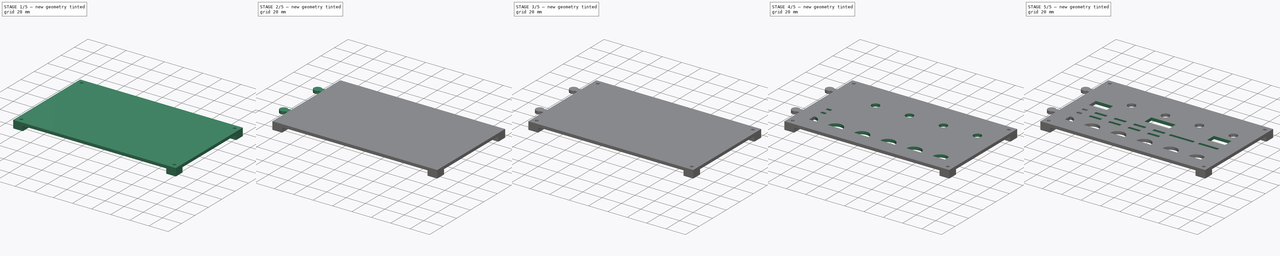
[diagram: build sequence overview — one tinted view per stage of 5, left to right]
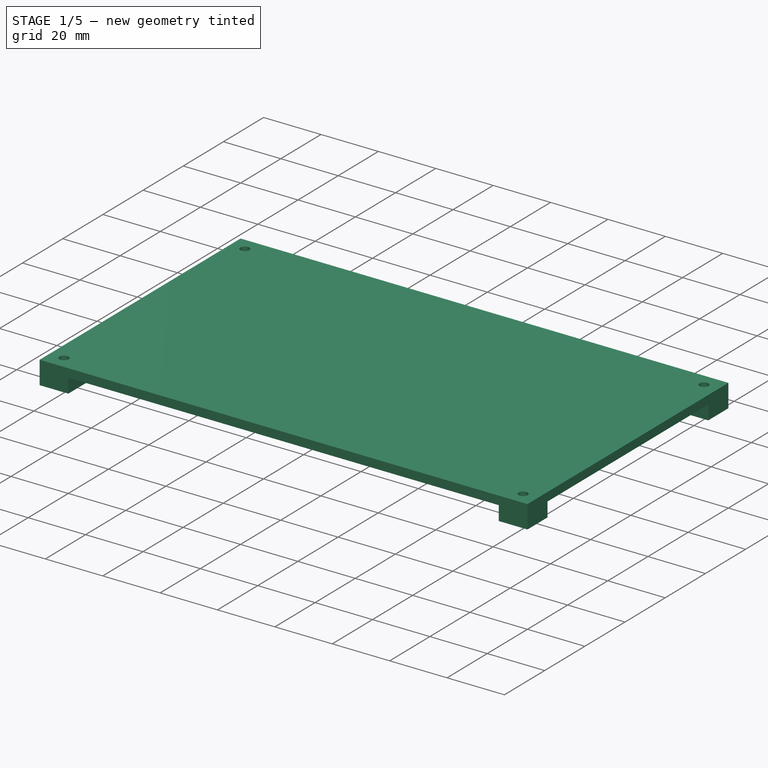
[diagram: stage 1 of 5 — iso view after this stage's code; geometry added in this stage tinted green]
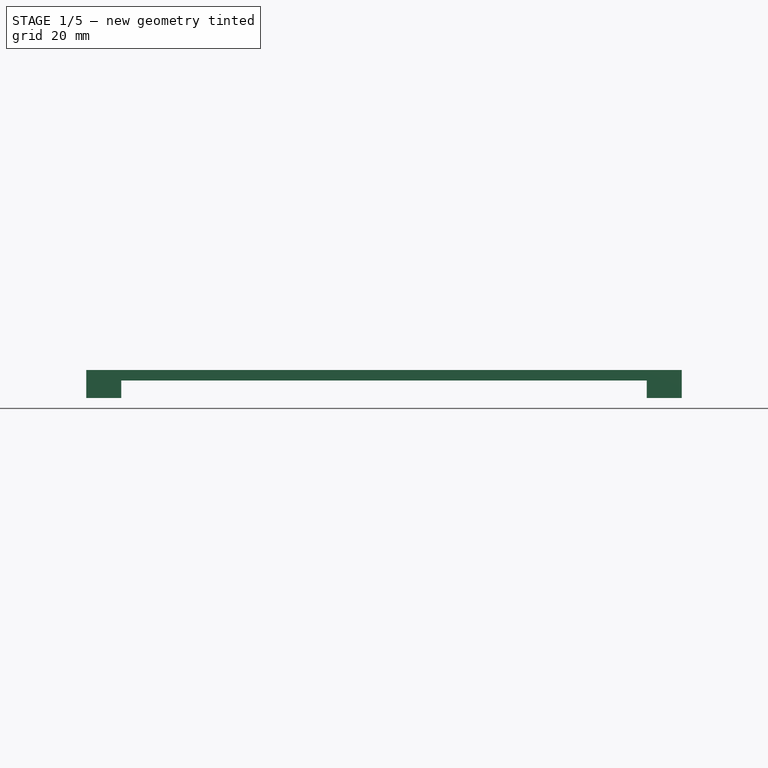
[diagram: stage 1 of 5 — front view after this stage's code; geometry added in this stage tinted green]
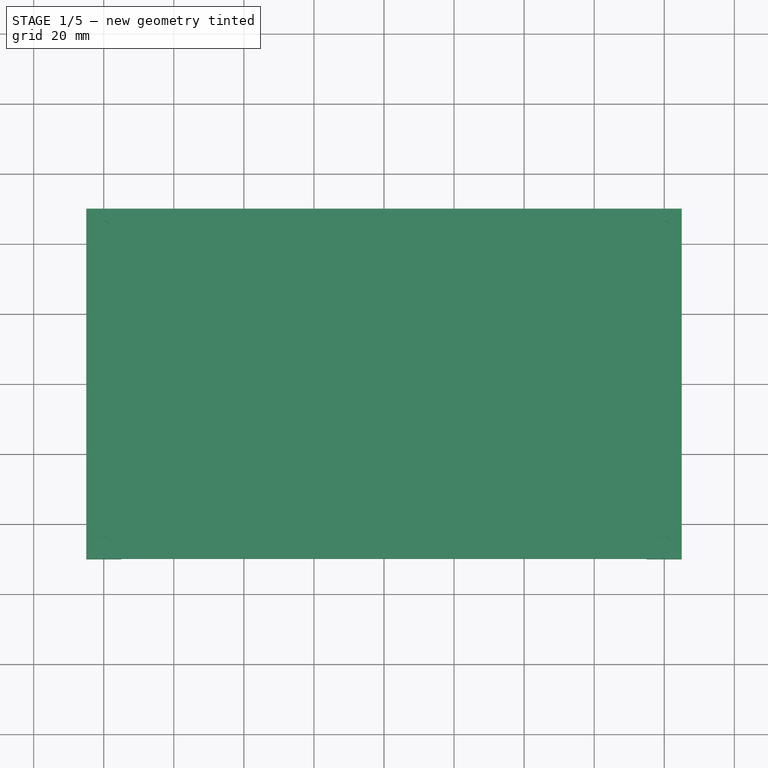
[diagram: stage 1 of 5 — top view after this stage's code; geometry added in this stage tinted green]
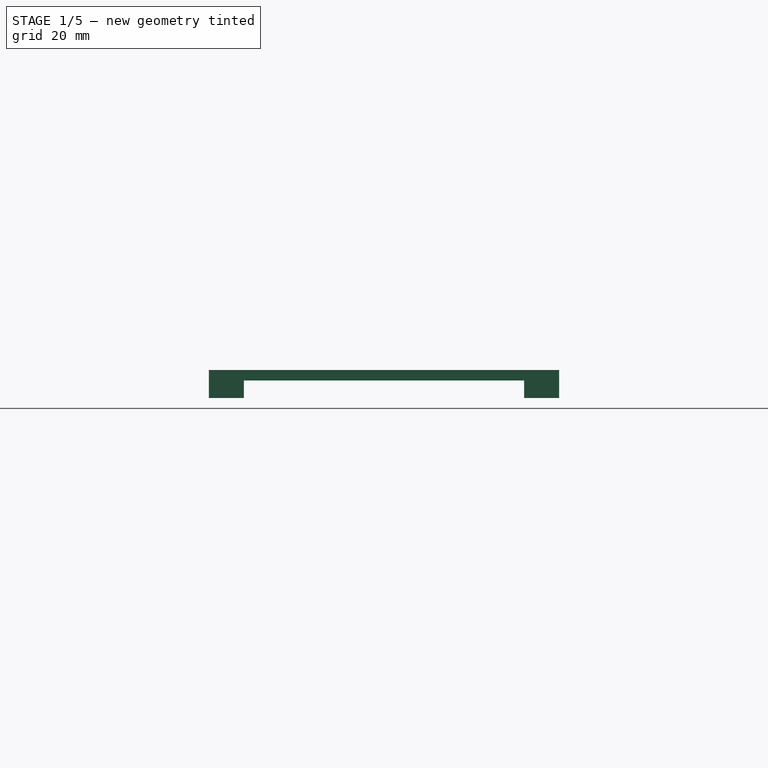
[diagram: stage 1 of 5 — right view after this stage's code; geometry added in this stage tinted green]
FCSTD DOCUMENT  (FreeCAD 0.17R13522 (Git))
Label: GongJuJia-jwei-1.0
License: All rights reserved
LicenseURL: http://en.wikipedia.org/wiki/All_rights_reserved
objects: Sketcher::SketchObject×13, PartDesign::Pocket×10, PartDesign::Mirrored×9, PartDesign::LinearPattern×6, PartDesign::MultiTransform×5, PartDesign::Pad×3, PartDesign::Body×2, PartDesign::ShapeBinder×1
note: 62 computed .brp shape members not serialized (recipe doc carries the construction recipe); baked Part::Feature solids carry a one-line shape summary decoded from their .brp

FEATURE [Sketcher::SketchObject] Sketch007
  MapMode = 5
  Support = -> [XY_Plane001]
  sketch-geometry (4):
    g0: LineSegment StartX=-85 StartY=50 StartZ=0 EndX=85 EndY=50 EndZ=0
    g1: LineSegment StartX=85 StartY=50 StartZ=0 EndX=85 EndY=-50 EndZ=0
    g2: LineSegment StartX=85 StartY=-50 StartZ=0 EndX=-85 EndY=-50 EndZ=0
    g3: LineSegment StartX=-85 StartY=-50 StartZ=0 EndX=-85 EndY=50 EndZ=0
  constraints (12):
    c: Coincident(g0,g1)
    c: Coincident(g1,g2)
    c: Coincident(g2,g3)
    c: Coincident(g3,g0)
    c: Horizontal(g0)
    c: Horizontal(g2)
    c: Vertical(g1)
    c: Vertical(g3)
    c: DistanceX(g0,g0) = 170
    c: DistanceY(g3,g3) = 100
    c: DistanceY(g-1,g0) = 50
    c: DistanceX(g-2,g0) = 85
FEATURE [PartDesign::Pad] Pad001
  Length = 3
  Length2 = 100
  Profile = -> Sketch007
  Type = 0
FEATURE [Sketcher::SketchObject] Sketch008
  ExternalGeometry = -> [Pad001]
  MapMode = 5
  Placement = pos=(0,0,0) rot=(1,0,0;3.14159rad)
  Support = -> [Pad001]
  sketch-geometry (1):
    g0: Circle CenterX=-80 CenterY=45 CenterZ=0 NormalX=0 NormalY=0 NormalZ=1 AngleXU=0 Radius=1.55
  constraints (3):
    c: Radius(g0) = 1.55
    c: Distance(g0,g-3) = 5
    c: Distance(g0,g-4) = 5
FEATURE [PartDesign::Pocket] Pocket006
  BaseFeature = -> Pad001
  Length = 5
  Length2 = 100
  Midplane = true
  Profile = -> Sketch008
  Type = 1
FEATURE [PartDesign::Mirrored] Mirrored003
  MirrorPlane = -> Sketch008 [V_Axis]
FEATURE [PartDesign::Mirrored] Mirrored004
  MirrorPlane = -> Sketch008 [H_Axis]
FEATURE [PartDesign::MultiTransform] MultiTransform002
  BaseFeature = -> Pocket006
  Originals = -> [Pocket006]
  Transformations = -> [Mirrored003,Mirrored004]
FEATURE [Sketcher::SketchObject] Sketch009
  ExternalGeometry = -> [MultiTransform002]
  MapMode = 5
  Placement = pos=(0,0,0) rot=(1,0,0;3.14159rad)
  Support = -> [MultiTransform002]
  sketch-geometry (4):
    g0: LineSegment StartX=-85 StartY=50 StartZ=0 EndX=-75 EndY=50 EndZ=0
    g1: LineSegment StartX=-75 StartY=50 StartZ=0 EndX=-75 EndY=40 EndZ=0
    g2: LineSegment StartX=-75 StartY=40 StartZ=0 EndX=-85 EndY=40 EndZ=0
    g3: LineSegment StartX=-85 StartY=40 StartZ=0 EndX=-85 EndY=50 EndZ=0
  constraints (11):
    c: Coincident(g0,g1)
    c: Coincident(g1,g2)
    c: Coincident(g2,g3)
    c: Coincident(g3,g0)
    c: Horizontal(g0)
    c: Horizontal(g2)
    c: Vertical(g1)
    c: Vertical(g3)
    c: Distance(g0) = 10
    c: DistanceY(g3,g3) = 10
    c: Coincident(g0,g-4)
FEATURE [PartDesign::Pad] Pad002
  BaseFeature = -> MultiTransform002
  Length = 5
  Length2 = 100
  Profile = -> Sketch009
  Type = 0
FEATURE [PartDesign::Mirrored] Mirrored005
  MirrorPlane = -> Sketch009 [V_Axis]
FEATURE [PartDesign::Mirrored] Mirrored006
  MirrorPlane = -> Sketch009 [H_Axis]
FEATURE [PartDesign::MultiTransform] MultiTransform003
  BaseFeature = -> Pad002
  Originals = -> [Pad002]
  Transformations = -> [Mirrored005,Mirrored006]
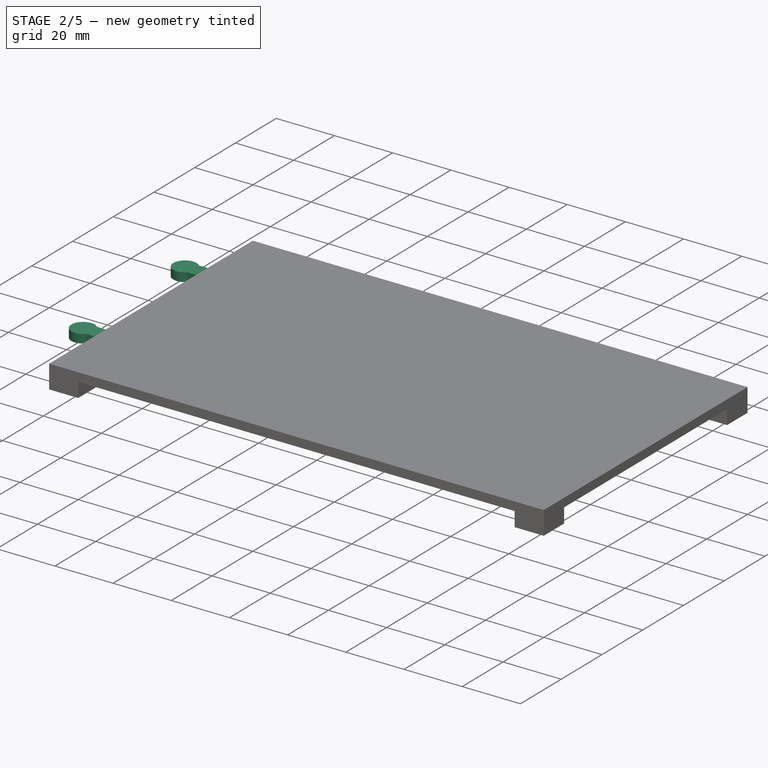
[diagram: stage 2 of 5 — iso view after this stage's code; geometry added in this stage tinted green]
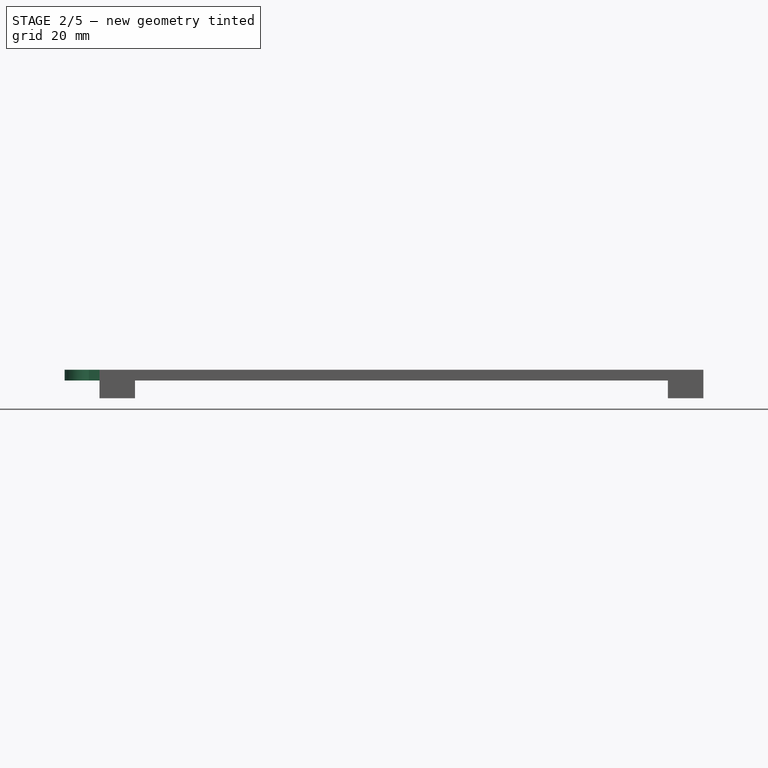
[diagram: stage 2 of 5 — front view after this stage's code; geometry added in this stage tinted green]
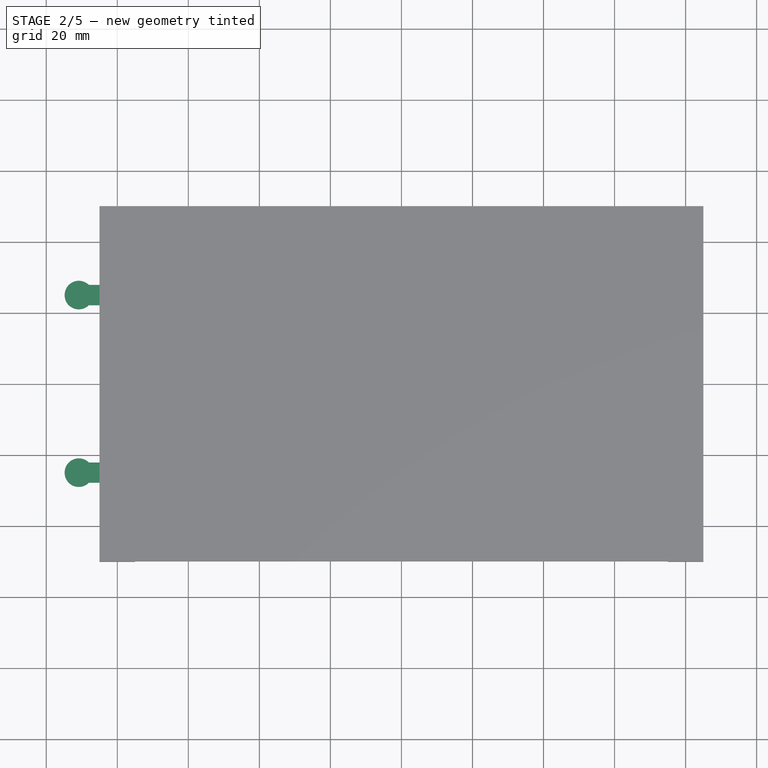
[diagram: stage 2 of 5 — top view after this stage's code; geometry added in this stage tinted green]
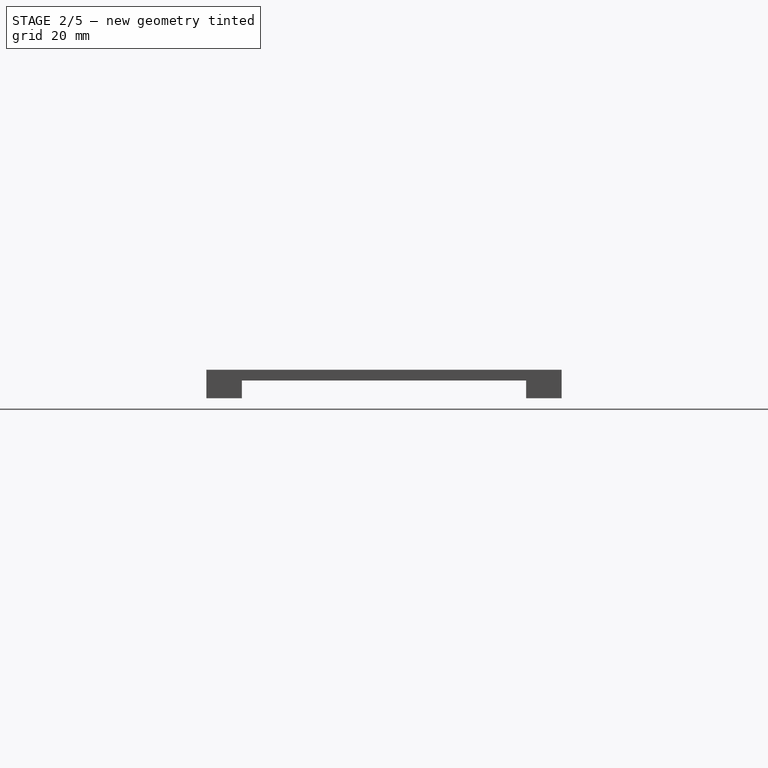
[diagram: stage 2 of 5 — right view after this stage's code; geometry added in this stage tinted green]
FEATURE [Sketcher::SketchObject] Sketch
  MapMode = 5
  Support = -> [XY_Plane]
  sketch-geometry (12):
    g0: LineSegment StartX=-85 StartY=50 StartZ=0 EndX=85 EndY=50 EndZ=0
    g1: LineSegment StartX=85 StartY=0 StartZ=0 EndX=-85 EndY=0 EndZ=0
    g2: ArcOfCircle CenterX=-90.8284 CenterY=25 CenterZ=0 NormalX=0 NormalY=0 NormalZ=1 AngleXU=0 Radius=4 StartAngle=0.785398 EndAngle=5.49779
    g3: LineSegment StartX=-88 StartY=22.1716 StartZ=0 EndX=-85 EndY=22.1716 EndZ=0
    g4: LineSegment StartX=-88 StartY=27.8284 StartZ=0 EndX=-85 EndY=27.8284 EndZ=0
    g5: LineSegment StartX=-85 StartY=50 StartZ=0 EndX=-85 EndY=27.8284 EndZ=0
    g6: LineSegment StartX=-85 StartY=22.1716 StartZ=0 EndX=-85 EndY=0 EndZ=0
    g7: ArcOfCircle CenterX=78.818 CenterY=25 CenterZ=0 NormalX=0 NormalY=0 NormalZ=1 AngleXU=0 Radius=4.5 StartAngle=0.785398 EndAngle=5.49779
    g8: LineSegment StartX=82 StartY=28.182 StartZ=0 EndX=85 EndY=28.182 EndZ=0
    g9: LineSegment StartX=82 StartY=21.818 StartZ=0 EndX=85 EndY=21.818 EndZ=0
    g10: LineSegment StartX=85 StartY=0 StartZ=0 EndX=85 EndY=21.818 EndZ=0
    g11: LineSegment StartX=85 StartY=28.182 StartZ=0 EndX=85 EndY=50 EndZ=0
  constraints (37):
    c: Horizontal(g0)
    c: Horizontal(g1)
    c: DistanceX(g0,g0) = 170
    c: DistanceY(g1,g0) = 50
    c: DistanceX(g-2,g0) = 85
    c: Radius(g2) = 4
    c: Angle(g2) = 4.71239
    c: Vertical(g2,g2)
    c: DistanceY(g-1,g2) = 25
    c: Coincident(g3,g2)
    c: Horizontal(g3)
    c: Coincident(g4,g2)
    c: Horizontal(g4)
    c: Coincident(g5,g0)
    c: Coincident(g5,g4)
    c: Vertical(g5)
    c: Coincident(g6,g3)
    c: Coincident(g6,g1)
    c: Vertical(g6)
    c: DistanceX(g4,g4) = 3
    c: Radius(g7) = 4.5
    c: Angle(g7) = 4.71239
    c: Vertical(g7,g7)
    c: DistanceY(g-1,g7) = 25
    c: Coincident(g8,g7)
    c: Horizontal(g8)
    c: Coincident(g9,g7)
    c: Horizontal(g9)
    c: DistanceX(g8,g8) = 3
    c: Coincident(g10,g1)
    c: Coincident(g10,g9)
    c: Vertical(g10)
    c: Coincident(g11,g8)
    c: Coincident(g11,g0)
    c: Vertical(g11)
    c: Vertical(g1,g0)
    c: Vertical(g0,g1)
FEATURE [PartDesign::Pad] Pad
  Length = 3
  Length2 = 100
  Profile = -> Sketch
  Type = 0
FEATURE [PartDesign::Mirrored] Mirrored
  BaseFeature = -> Pad
  MirrorPlane = -> Sketch [H_Axis]
  Originals = -> [Pad]
FEATURE [Sketcher::SketchObject] Sketch010
  ExternalGeometry = -> [MultiTransform003]
  MapMode = 5
  Placement = pos=(0,0,-5) rot=(1,0,0;3.14159rad)
  Support = -> [MultiTransform003]
  sketch-geometry (1):
    g0: Circle CenterX=-80 CenterY=45 CenterZ=0 NormalX=0 NormalY=0 NormalZ=1 AngleXU=0 Radius=3
  constraints (3):
    c: Radius(g0) = 3
    c: Distance(g0,g-3) = 5
    c: Distance(g0,g-4) = 5
FEATURE [PartDesign::Pocket] Pocket007
  BaseFeature = -> MultiTransform003
  Length = 5
  Length2 = 100
  Profile = -> Sketch010
  Type = 0
FEATURE [PartDesign::Mirrored] Mirrored007
  MirrorPlane = -> Sketch010 [V_Axis]
FEATURE [PartDesign::Mirrored] Mirrored008
  MirrorPlane = -> Sketch010 [H_Axis]
FEATURE [PartDesign::MultiTransform] MultiTransform004
  BaseFeature = -> Pocket007
  Originals = -> [Pocket007]
  Transformations = -> [Mirrored007,Mirrored008]
FEATURE [PartDesign::Body] Body  label="up"
  Group = -> [Sketch,Pad,Mirrored,Copyrefine,Sketch011,Pocket,MultiTransform,Mirrored009,Mirrored010,Sketch012,Pocket008,LinearPattern,Sketch013,Pocket009,LinearPattern001,Sketch014,Pocket010,LinearPattern002,Sketch015,Pocket011,LinearPattern003,Sketch016,Pocket012,LinearPattern004,Sketch017,Pocket013,MultiTransform005,LinearPattern005]
  Origin = -> Origin
  Tip = -> MultiTransform005
FEATURE [Sketcher::SketchObject] Sketch018
  MapMode = 5
  Placement = pos=(0,0,0) rot=(1,0,0;3.14159rad)
  Support = -> [MultiTransform004]
  sketch-geometry (4):
    g0: LineSegment StartX=-70 StartY=35 StartZ=0 EndX=70 EndY=35 EndZ=0
    g1: LineSegment StartX=70 StartY=35 StartZ=0 EndX=70 EndY=-35 EndZ=0
    g2: LineSegment StartX=70 StartY=-35 StartZ=0 EndX=-70 EndY=-35 EndZ=0
    g3: LineSegment StartX=-70 StartY=-35 StartZ=0 EndX=-70 EndY=35 EndZ=0
  constraints (12):
    c: Coincident(g0,g1)
    c: Coincident(g1,g2)
    c: Coincident(g2,g3)
    c: Coincident(g3,g0)
    c: Horizontal(g0)
    c: Horizontal(g2)
    c: Vertical(g1)
    c: Vertical(g3)
    c: DistanceX(g2,g2) = 140
    c: DistanceX(g-2,g2) = -70
    c: DistanceY(g3,g3) = 70
    c: DistanceY(g-1,g2) = -35
FEATURE [PartDesign::Pocket] Pocket014
  BaseFeature = -> MultiTransform004
  Length = 5
  Length2 = 100
  Profile = -> Sketch018
  Type = 1
FEATURE [PartDesign::Body] Body001  label="down"
  Group = -> [Sketch007,Pad001,Sketch008,Pocket006,MultiTransform002,Mirrored003,Mirrored004,Sketch009,Pad002,MultiTransform003,Mirrored005,Mirrored006,Sketch010,Pocket007,MultiTransform004,Mirrored007,Mirrored008,Sketch018,Pocket014]
  Origin = -> Origin001
  Tip = -> Pocket014
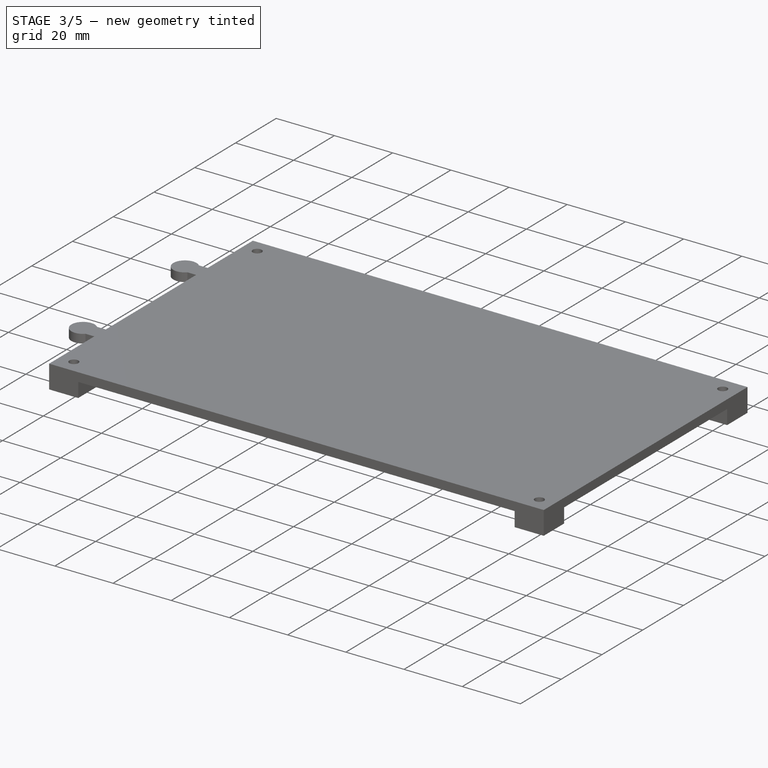
[diagram: stage 3 of 5 — iso view after this stage's code; geometry added in this stage tinted green]
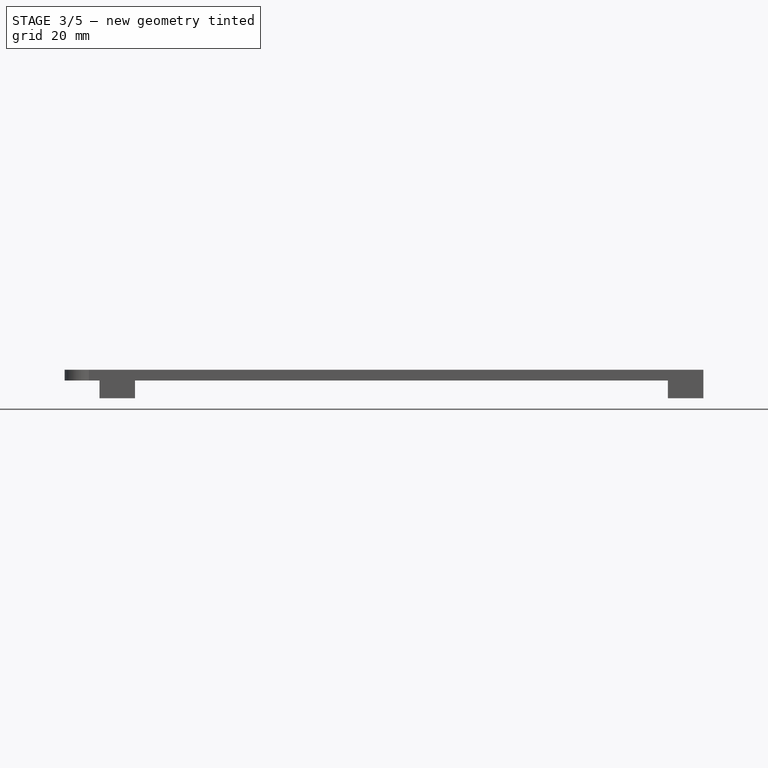
[diagram: stage 3 of 5 — front view after this stage's code; geometry added in this stage tinted green]
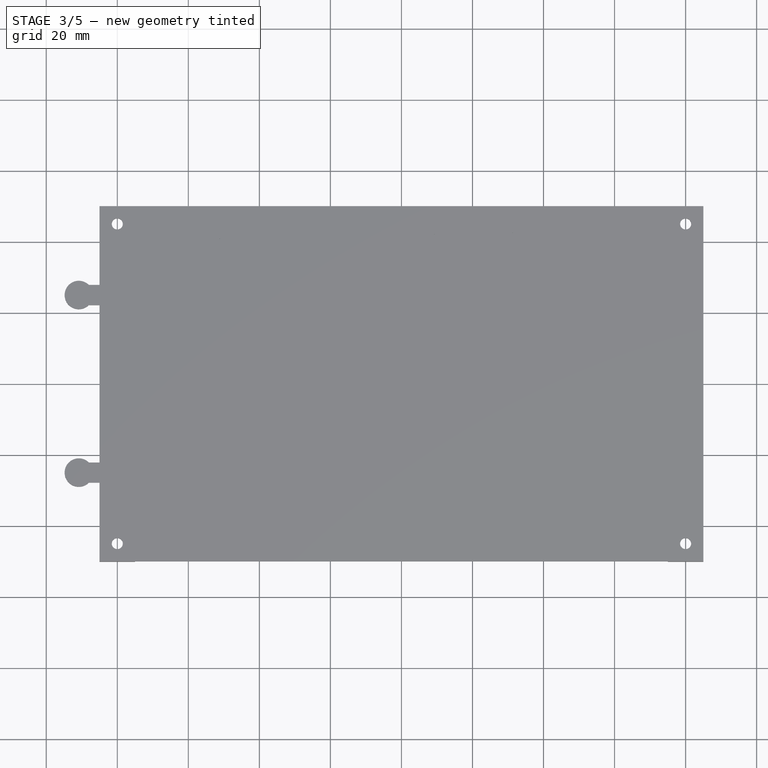
[diagram: stage 3 of 5 — top view after this stage's code; geometry added in this stage tinted green]
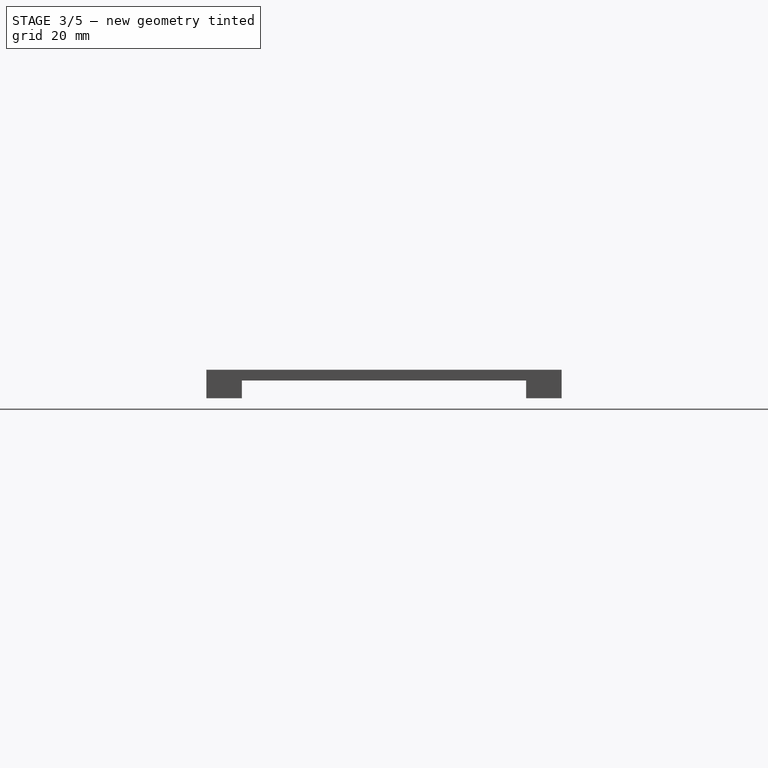
[diagram: stage 3 of 5 — right view after this stage's code; geometry added in this stage tinted green]
FEATURE [PartDesign::ShapeBinder] Copyrefine
FEATURE [Sketcher::SketchObject] Sketch011
  ExternalGeometry = -> [Copyrefine]
  MapMode = 5
  Placement = pos=(0,0,3) rot=(0,0,1;0rad)
  Support = -> [Copyrefine]
  sketch-geometry (1):
    g0: Circle CenterX=-80 CenterY=45 CenterZ=0 NormalX=0 NormalY=0 NormalZ=1 AngleXU=0 Radius=1.6
  constraints (3):
    c: Radius(g0) = 1.6
    c: Distance(g0,g-4) = 5
    c: Distance(g0,g-3) = 5
FEATURE [PartDesign::Pocket] Pocket
  BaseFeature = -> Mirrored
  Length = 5
  Length2 = 100
  Profile = -> Sketch011
  Type = 1
FEATURE [PartDesign::Mirrored] Mirrored009
  MirrorPlane = -> Sketch011 [V_Axis]
FEATURE [PartDesign::Mirrored] Mirrored010
  MirrorPlane = -> Sketch011 [H_Axis]
FEATURE [PartDesign::MultiTransform] MultiTransform
  BaseFeature = -> Pocket
  Originals = -> [Pocket]
  Transformations = -> [Mirrored009,Mirrored010]
FEATURE [Sketcher::SketchObject] Sketch012
  ExternalGeometry = -> [MultiTransform]
  MapMode = 5
  Placement = pos=(0,0,3) rot=(0,0,1;0rad)
  Support = -> [MultiTransform]
  sketch-geometry (1):
    g0: Circle CenterX=-75 CenterY=40 CenterZ=0 NormalX=0 NormalY=0 NormalZ=1 AngleXU=0 Radius=2.6
  constraints (3):
    c: Radius(g0) = 2.6
    c: Distance(g0,g-4) = 10
    c: Distance(g0,g-3) = 10
FEATURE [PartDesign::Pocket] Pocket008
  BaseFeature = -> MultiTransform
  Length = 5
  Length2 = 100
  Profile = -> Sketch012
  Type = 1
FEATURE [PartDesign::LinearPattern] LinearPattern
  BaseFeature = -> Pocket008
  Direction = -> Sketch012 [H_Axis]
  Length = 150
  Occurrences = 8
  Originals = -> [Pocket008]
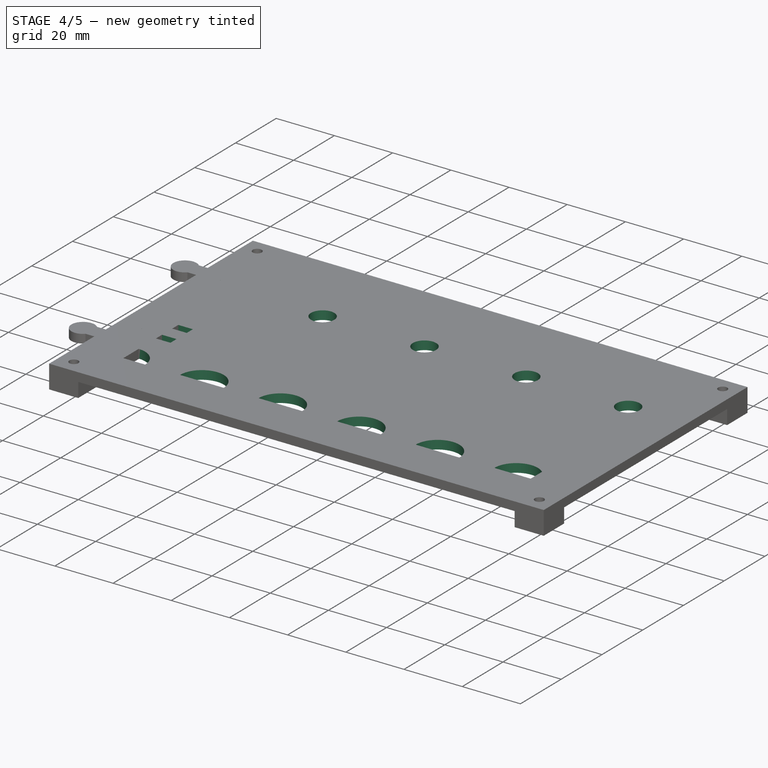
[diagram: stage 4 of 5 — iso view after this stage's code; geometry added in this stage tinted green]
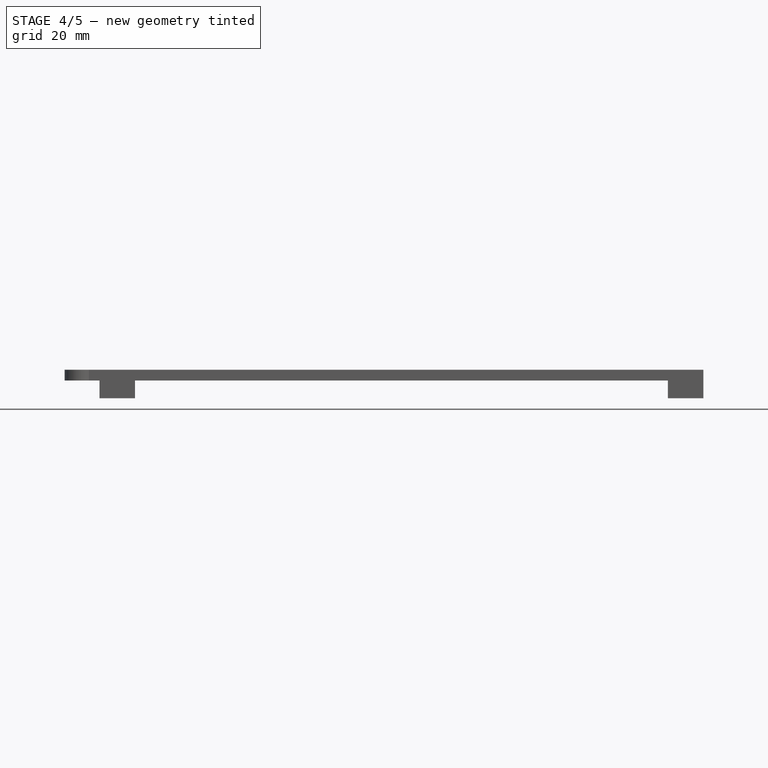
[diagram: stage 4 of 5 — front view after this stage's code; geometry added in this stage tinted green]
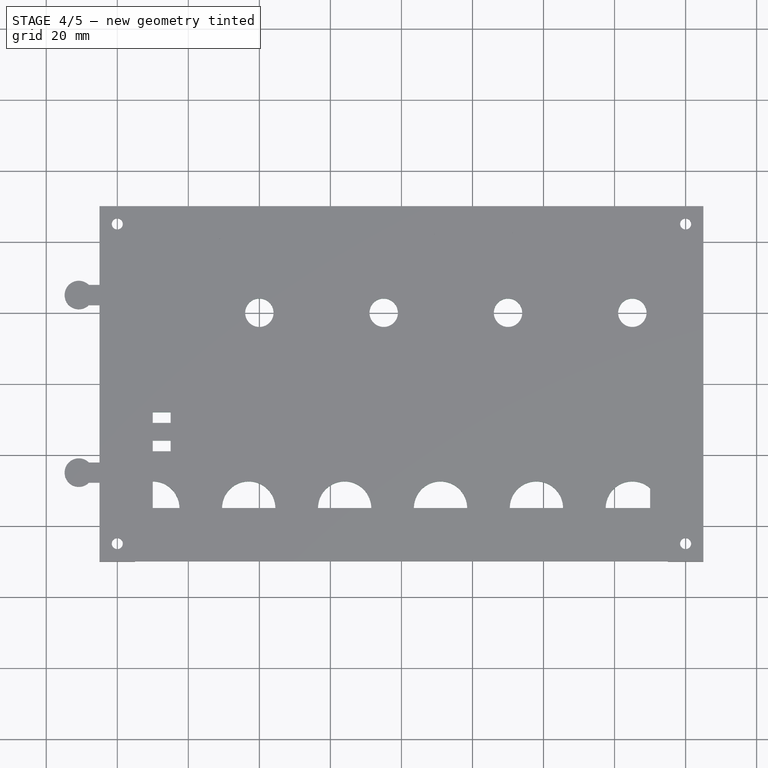
[diagram: stage 4 of 5 — top view after this stage's code; geometry added in this stage tinted green]
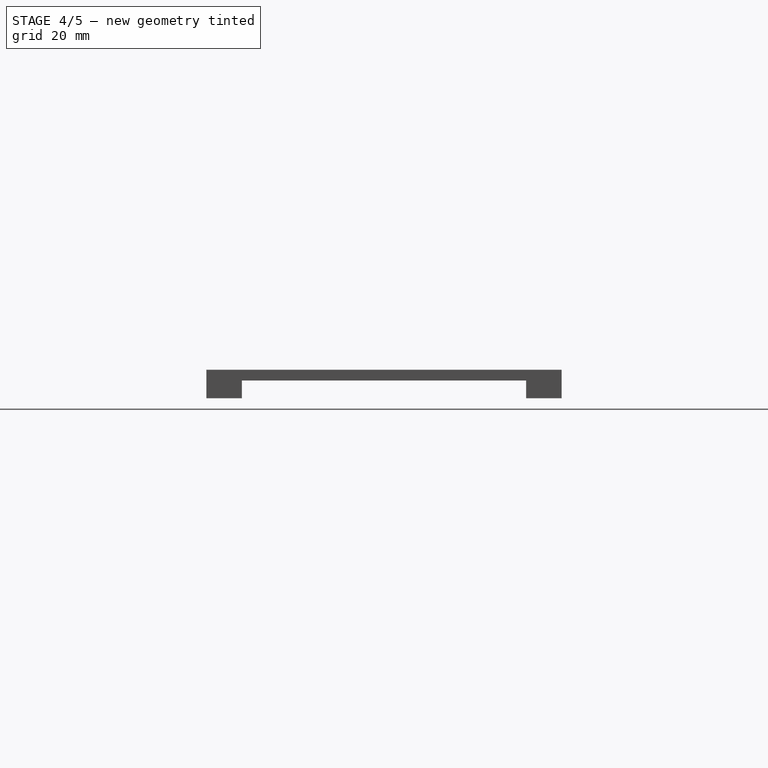
[diagram: stage 4 of 5 — right view after this stage's code; geometry added in this stage tinted green]
FEATURE [Sketcher::SketchObject] Sketch013
  ExternalGeometry = -> [LinearPattern]
  MapMode = 5
  Placement = pos=(0,0,3) rot=(0,0,1;0rad)
  Support = -> [LinearPattern]
  sketch-geometry (1):
    g0: Circle CenterX=-75 CenterY=20 CenterZ=0 NormalX=0 NormalY=0 NormalZ=1 AngleXU=0 Radius=4
  constraints (3):
    c: Radius(g0) = 4
    c: Distance(g0,g-3) = 30
    c: Distance(g0,g-4) = 10
FEATURE [PartDesign::Pocket] Pocket009
  BaseFeature = -> LinearPattern
  Length = 5
  Length2 = 100
  Profile = -> Sketch013
  Type = 1
FEATURE [PartDesign::LinearPattern] LinearPattern001
  BaseFeature = -> Pocket009
  Direction = -> Sketch013 [H_Axis]
  Length = 140
  Occurrences = 5
  Originals = -> [Pocket009]
FEATURE [Sketcher::SketchObject] Sketch014
  ExternalGeometry = -> [LinearPattern001]
  MapMode = 5
  Placement = pos=(0,0,3) rot=(0,0,1;0rad)
  Support = -> [LinearPattern001]
  sketch-geometry (1):
    g0: Circle CenterX=-70 CenterY=-35 CenterZ=0 NormalX=0 NormalY=0 NormalZ=1 AngleXU=0 Radius=7.5
  constraints (3):
    c: Radius(g0) = 7.5
    c: Distance(g0,g-4) = 15
    c: Distance(g0,g-3) = 15
FEATURE [PartDesign::Pocket] Pocket010
  BaseFeature = -> LinearPattern001
  Length = 5
  Length2 = 100
  Profile = -> Sketch014
  Type = 1
FEATURE [PartDesign::LinearPattern] LinearPattern002
  BaseFeature = -> Pocket010
  Direction = -> Sketch014 [H_Axis]
  Length = 135
  Occurrences = 6
  Originals = -> [Pocket010]
FEATURE [Sketcher::SketchObject] Sketch015
  ExternalGeometry = -> [LinearPattern002]
  MapMode = 5
  Placement = pos=(0,0,3) rot=(0,0,1;0rad)
  Support = -> [LinearPattern002]
  sketch-geometry (8):
    g0: LineSegment StartX=-77 StartY=-8 StartZ=0 EndX=-65 EndY=-8 EndZ=0
    g1: LineSegment StartX=-65 StartY=-8 StartZ=0 EndX=-65 EndY=-11 EndZ=0
    g2: LineSegment StartX=-65 StartY=-11 StartZ=0 EndX=-77 EndY=-11 EndZ=0
    g3: LineSegment StartX=-77 StartY=-11 StartZ=0 EndX=-77 EndY=-8 EndZ=0
    g4: LineSegment StartX=-77 StartY=-16 StartZ=0 EndX=-65 EndY=-16 EndZ=0
    g5: LineSegment StartX=-65 StartY=-16 StartZ=0 EndX=-65 EndY=-19 EndZ=0
    g6: LineSegment StartX=-65 StartY=-19 StartZ=0 EndX=-77 EndY=-19 EndZ=0
    g7: LineSegment StartX=-77 StartY=-19 StartZ=0 EndX=-77 EndY=-16 EndZ=0
  constraints (24):
    c: Coincident(g0,g1)
    c: Coincident(g1,g2)
    c: Coincident(g2,g3)
    c: Coincident(g3,g0)
    c: Horizontal(g0)
    c: Horizontal(g2)
    c: Vertical(g1)
    c: Vertical(g3)
    c: Coincident(g4,g5)
    c: Coincident(g5,g6)
    c: Coincident(g6,g7)
    c: Coincident(g7,g4)
    c: Horizontal(g4)
    c: Horizontal(g6)
    c: Vertical(g5)
    c: Vertical(g7)
    c: DistanceY(g3,g3) = 3
    c: Distance(g4,g2) = 5
    c: DistanceX(g0,g0) = 12
    c: Vertical(g2,g4)
    c: Vertical(g4,g1)
    c: Distance(g4,g-3) = 8
    c: DistanceY(g-1,g0) = -8
    c: DistanceY(g5,g5) = 3
FEATURE [PartDesign::Pocket] Pocket011
  BaseFeature = -> LinearPattern002
  Length = 5
  Length2 = 100
  Profile = -> Sketch015
  Type = 1
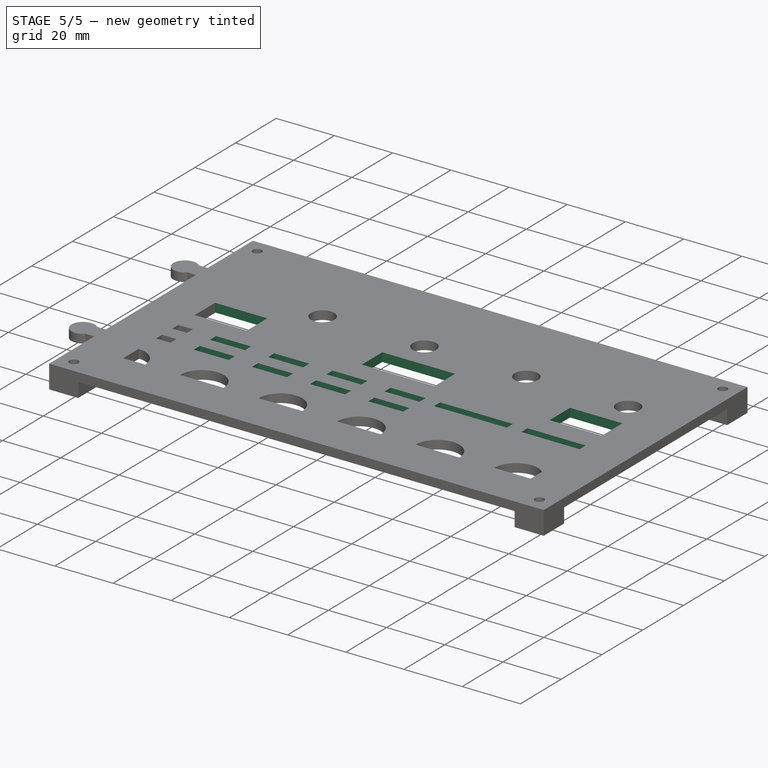
[diagram: stage 5 of 5 — iso view after this stage's code; geometry added in this stage tinted green]
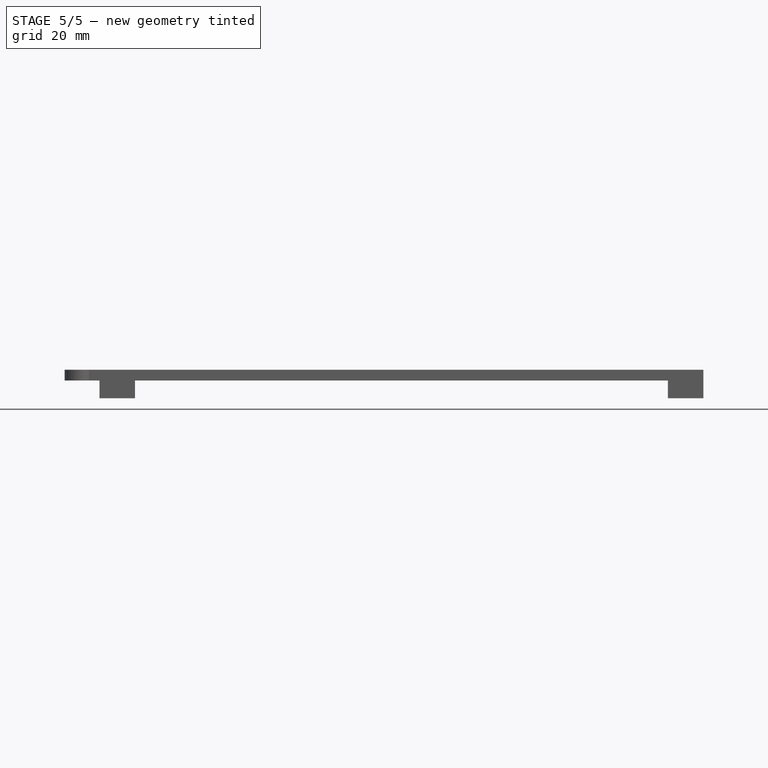
[diagram: stage 5 of 5 — front view after this stage's code; geometry added in this stage tinted green]
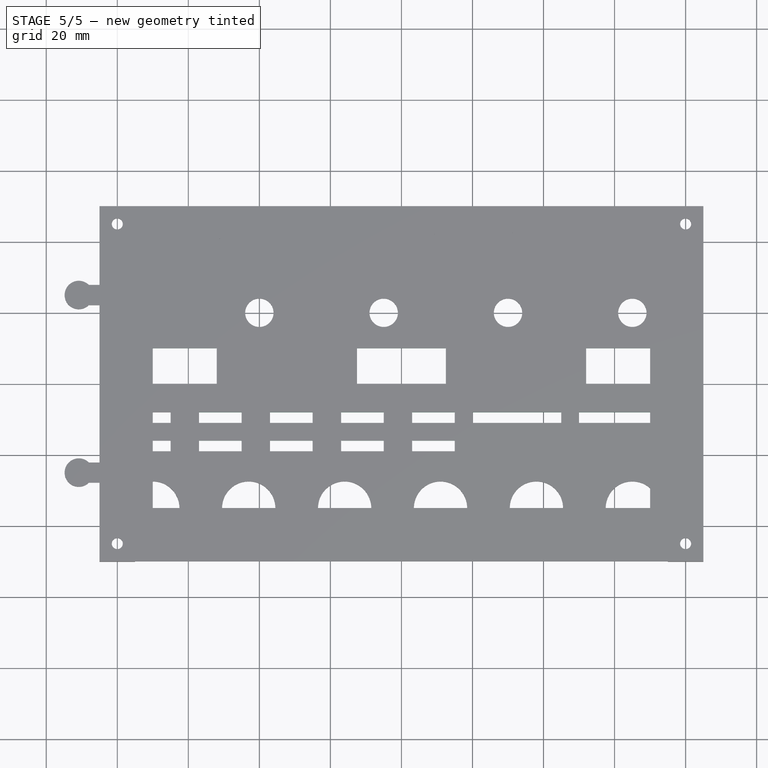
[diagram: stage 5 of 5 — top view after this stage's code; geometry added in this stage tinted green]
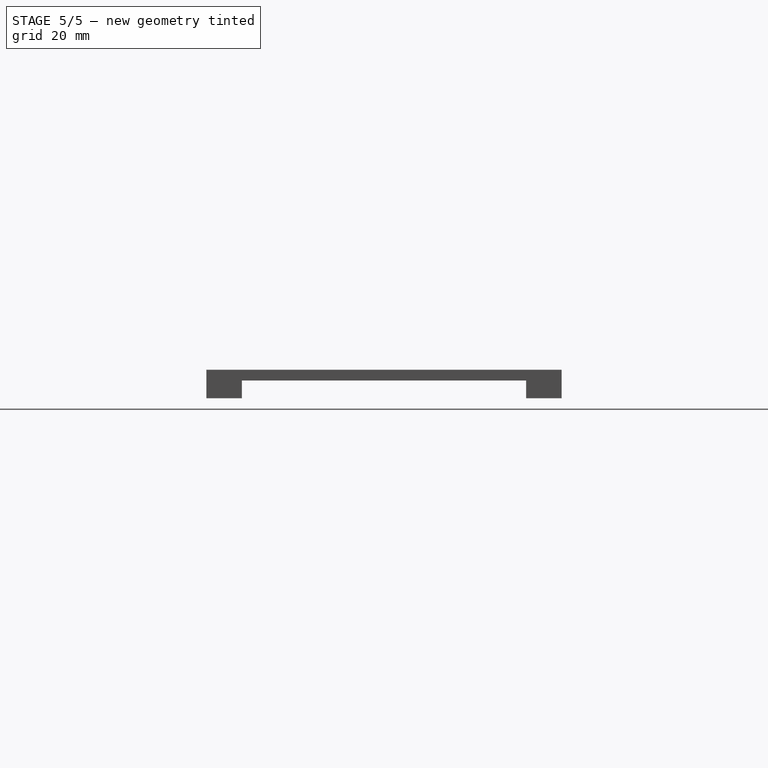
[diagram: stage 5 of 5 — right view after this stage's code; geometry added in this stage tinted green]
FEATURE [PartDesign::LinearPattern] LinearPattern003
  BaseFeature = -> Pocket011
  Direction = -> Sketch015 [H_Axis]
  Length = 80
  Occurrences = 5
  Originals = -> [Pocket011]
FEATURE [Sketcher::SketchObject] Sketch016
  ExternalGeometry = -> [LinearPattern003]
  MapMode = 5
  Placement = pos=(0,0,3) rot=(0,0,1;0rad)
  Support = -> [LinearPattern003]
  sketch-geometry (4):
    g0: LineSegment StartX=-77 StartY=10 StartZ=0 EndX=-52 EndY=10 EndZ=0
    g1: LineSegment StartX=-52 StartY=10 StartZ=0 EndX=-52 EndY=0 EndZ=0
    g2: LineSegment StartX=-52 StartY=0 StartZ=0 EndX=-77 EndY=0 EndZ=0
    g3: LineSegment StartX=-77 StartY=0 StartZ=0 EndX=-77 EndY=10 EndZ=0
  constraints (12):
    c: Coincident(g0,g1)
    c: Coincident(g1,g2)
    c: Coincident(g2,g3)
    c: Coincident(g3,g0)
    c: Horizontal(g0)
    c: Horizontal(g2)
    c: Vertical(g1)
    c: Vertical(g3)
    c: DistanceX(g0,g0) = 25
    c: DistanceY(g3,g3) = 10
    c: PointOnObject(g2,g-1)
    c: Distance(g0,g-3) = 8
FEATURE [PartDesign::Pocket] Pocket012
  BaseFeature = -> LinearPattern003
  Length = 5
  Length2 = 100
  Profile = -> Sketch016
  Type = 1
FEATURE [PartDesign::LinearPattern] LinearPattern004
  BaseFeature = -> Pocket012
  Direction = -> Sketch016 [H_Axis]
  Length = 129
  Occurrences = 3
  Originals = -> [Pocket012]
FEATURE [Sketcher::SketchObject] Sketch017
  ExternalGeometry = -> [LinearPattern004]
  MapMode = 5
  Placement = pos=(0,0,3) rot=(0,0,1;0rad)
  Support = -> [LinearPattern004]
  sketch-geometry (4):
    g0: LineSegment StartX=20 StartY=-8 StartZ=0 EndX=45 EndY=-8 EndZ=0
    g1: LineSegment StartX=45 StartY=-8 StartZ=0 EndX=45 EndY=-11 EndZ=0
    g2: LineSegment StartX=45 StartY=-11 StartZ=0 EndX=20 EndY=-11 EndZ=0
    g3: LineSegment StartX=20 StartY=-11 StartZ=0 EndX=20 EndY=-8 EndZ=0
  constraints (12):
    c: Coincident(g0,g1)
    c: Coincident(g1,g2)
    c: Coincident(g2,g3)
    c: Coincident(g3,g0)
    c: Horizontal(g0)
    c: Horizontal(g2)
    c: Vertical(g1)
    c: Vertical(g3)
    c: Distance(g0) = 25
    c: DistanceY(g3,g3) = 3
    c: DistanceY(g-1,g0) = -8
    c: DistanceX(g-2,g0) = 20
FEATURE [PartDesign::Pocket] Pocket013
  BaseFeature = -> LinearPattern004
  Length = 5
  Length2 = 100
  Profile = -> Sketch017
  Type = 1
FEATURE [PartDesign::LinearPattern] LinearPattern005
  Direction = -> Sketch017 [H_Axis]
  Length = 30
  Occurrences = 2
FEATURE [PartDesign::MultiTransform] MultiTransform005
  BaseFeature = -> Pocket013
  Originals = -> [Pocket013]
  Transformations = -> [LinearPattern005]
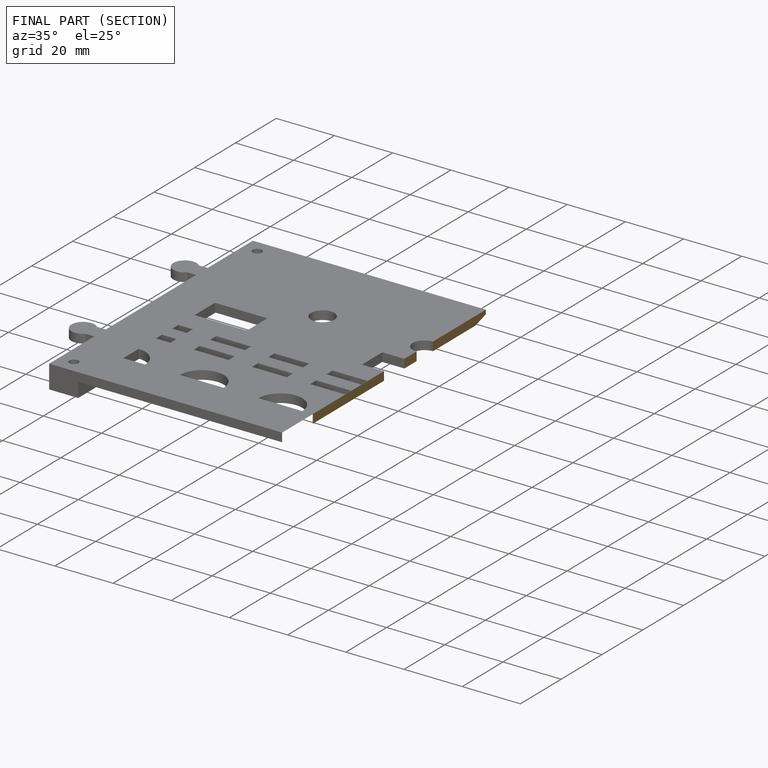
[diagram: finished part — half-section view (interior)]
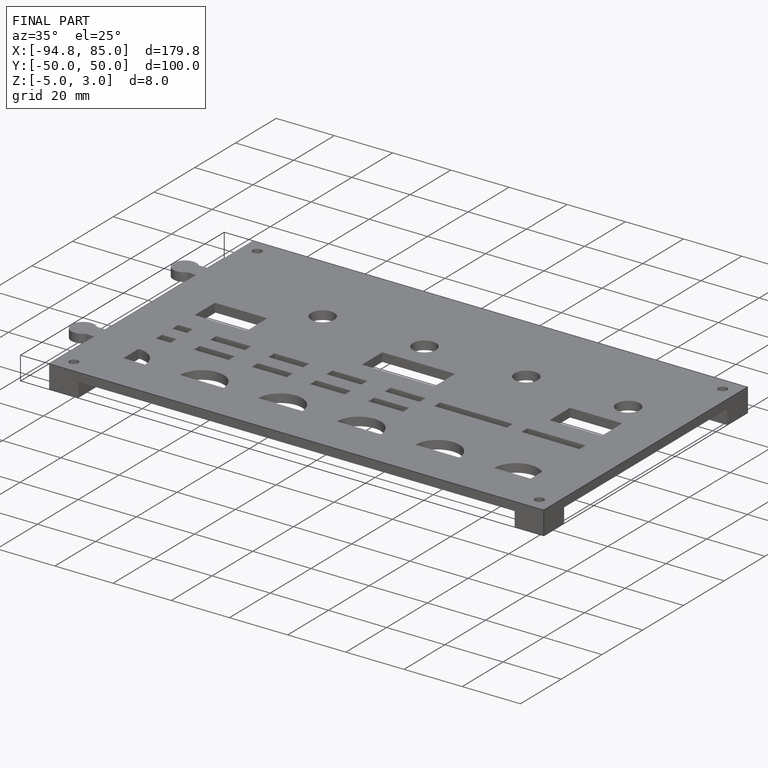
[diagram: finished part — iso view with bounding-box wireframe]
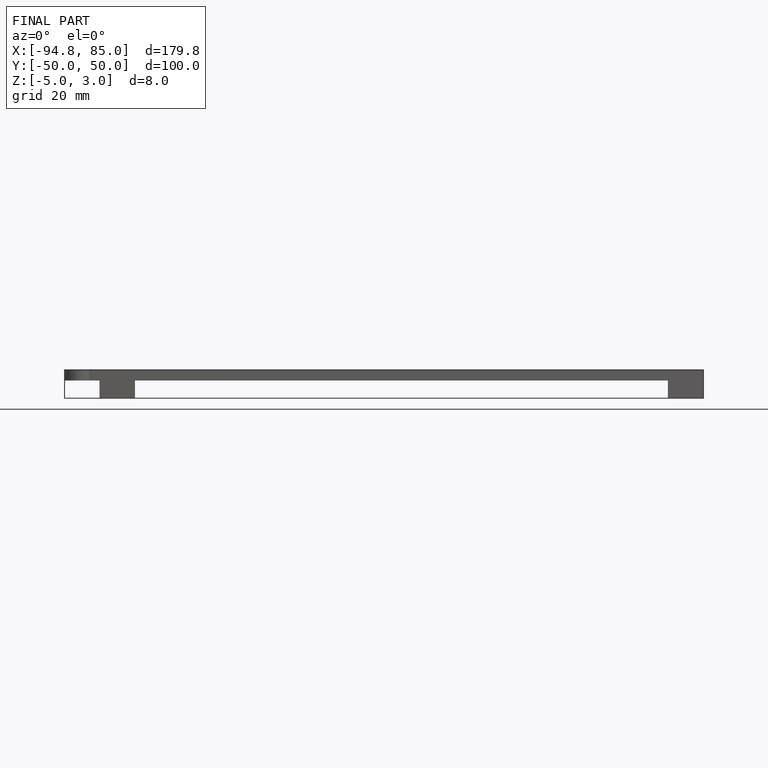
[diagram: finished part — front view with bounding-box wireframe]
